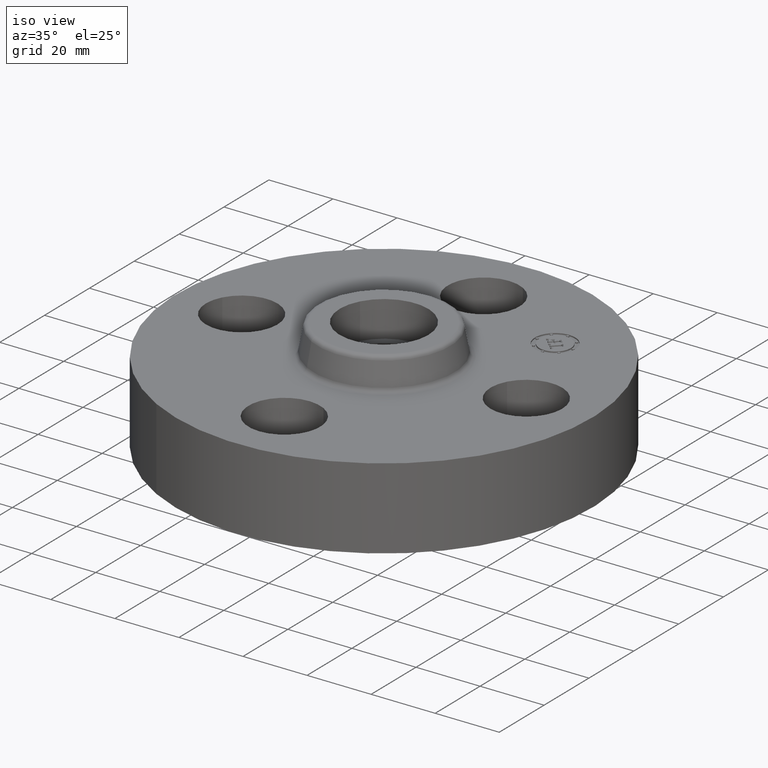
[diagram: clean part render]
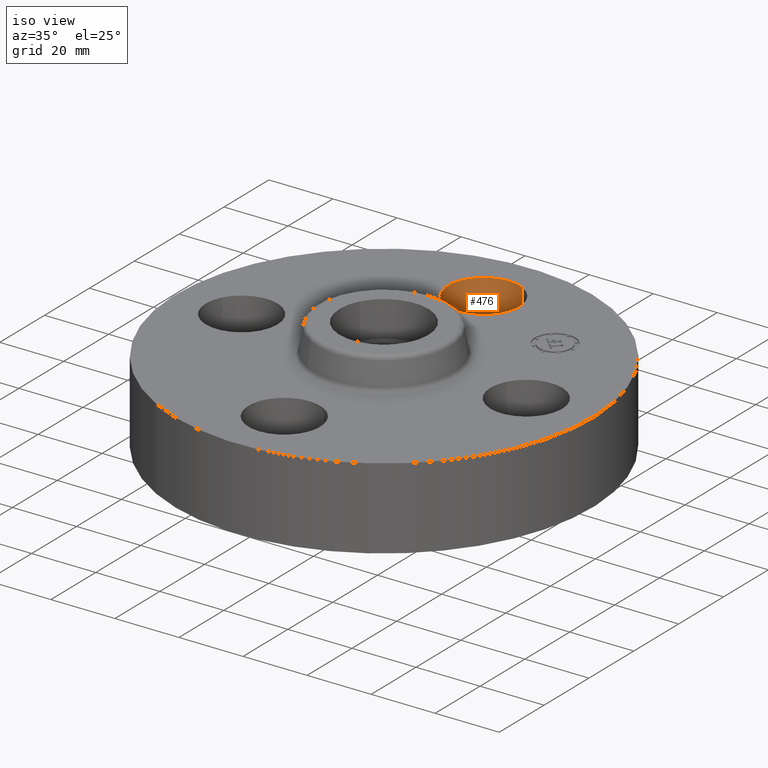
[diagram: same view with one face highlighted and labeled with its STEP entity id]
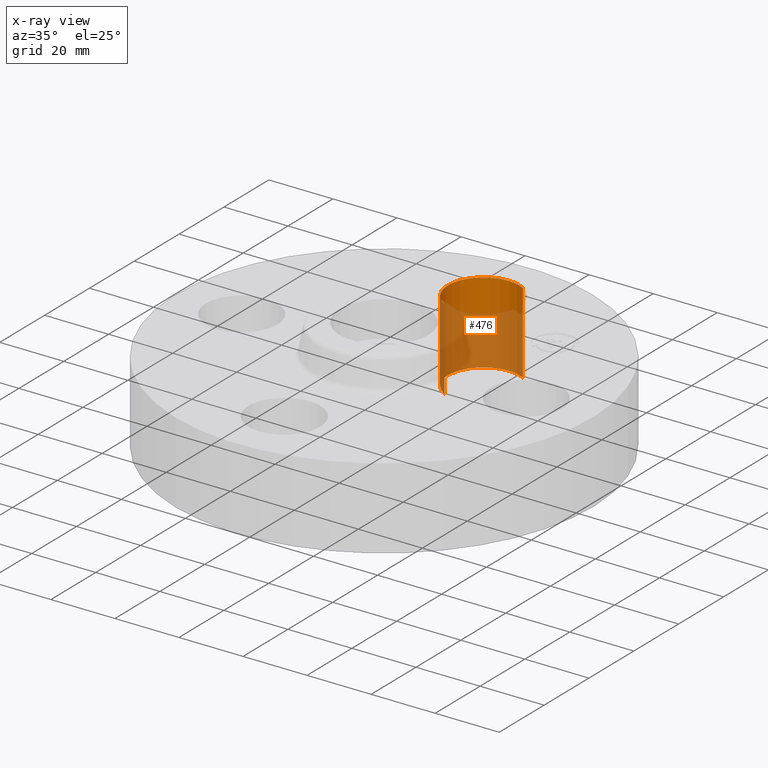
[diagram: x-ray of the same camera — body ghosted, the highlighted face saturated]
A machine part, iso view. The second image highlights one B-rep face of the part: STEP entity #476.
The next image is the same camera in x-ray: the body ghosted, the highlighted face saturated — about 67% of this face is hidden behind the body in this view.
In plain terms, the highlighted cylindrical surface (partial cylindrical patch) has radius 11.176 mm, axis along (0, 0, -1).
Its self-contained STEP definition (entity closure, byte-faithful):
#203=AXIS2_PLACEMENT_3D('Circle Axis2P3D',#201,#202,$) ;
#437=AXIS2_PLACEMENT_3D('Cylinder Axis2P3D',#434,#435,#436) ;
#467=AXIS2_PLACEMENT_3D('Circle Axis2P3D',#465,#466,$) ;
#201=CARTESIAN_POINT('Axis2P3D Location',(-4.19611851827E-016,1.75000000001,0.)) ;
#205=CARTESIAN_POINT('Vertex',(-0.210947236987,1.36386367277,0.)) ;
#207=CARTESIAN_POINT('Vertex',(0.210947236987,2.13613632724,0.)) ;
#434=CARTESIAN_POINT('Axis2P3D Location',(-3.21469784777E-016,1.75000000001,0.99606299213)) ;
#439=CARTESIAN_POINT('Line Origine',(0.210947236987,2.13613632724,0.500000000002)) ;
#443=CARTESIAN_POINT('Vertex',(0.210947236987,2.13613632724,1.)) ;
#446=CARTESIAN_POINT('Line Origine',(-0.210947236987,1.36386367277,0.500000000002)) ;
#450=CARTESIAN_POINT('Vertex',(-0.210947236987,1.36386367277,1.)) ;
#465=CARTESIAN_POINT('Axis2P3D Location',(-3.21469784777E-016,1.75000000001,1.)) ;
#202=DIRECTION('Axis2P3D Direction',(0.,0.,-0.0393700787402)) ;
#435=DIRECTION('Axis2P3D Direction',(0.,0.,-0.0393700787402)) ;
#436=DIRECTION('Axis2P3D XDirection',(-0.0188750212049,-0.0345504945626,-0.)) ;
#440=DIRECTION('Vector Direction',(0.,0.,-0.0393700787402)) ;
#447=DIRECTION('Vector Direction',(0.,0.,-0.0393700787402)) ;
#466=DIRECTION('Axis2P3D Direction',(0.,0.,-0.0393700787402)) ;
#441=VECTOR('Line Direction',#440,0.0393700787402) ;
#448=VECTOR('Line Direction',#447,0.0393700787402) ;
#471=ORIENTED_EDGE('',*,*,#452,.F.) ;
#472=ORIENTED_EDGE('',*,*,#209,.T.) ;
#473=ORIENTED_EDGE('',*,*,#445,.T.) ;
#474=ORIENTED_EDGE('',*,*,#469,.F.) ;
#476=ADVANCED_FACE('PartBody',(#475),#438,.F.) ;
#204=CIRCLE('generated circle',#203,0.440000000002) ;
#468=CIRCLE('generated circle',#467,0.440000000002) ;
#438=CYLINDRICAL_SURFACE('generated cylinder',#437,0.440000000002) ;
#209=EDGE_CURVE('',#206,#208,#204,.T.) ;
#445=EDGE_CURVE('',#208,#444,#442,.F.) ;
#452=EDGE_CURVE('',#206,#451,#449,.F.) ;
#469=EDGE_CURVE('',#451,#444,#468,.T.) ;
#470=EDGE_LOOP('',(#471,#472,#473,#474)) ;
#475=FACE_OUTER_BOUND('',#470,.T.) ;
#442=LINE('Line',#439,#441) ;
#449=LINE('Line',#446,#448) ;
#206=VERTEX_POINT('',#205) ;
#208=VERTEX_POINT('',#207) ;
#444=VERTEX_POINT('',#443) ;
#451=VERTEX_POINT('',#450) ;